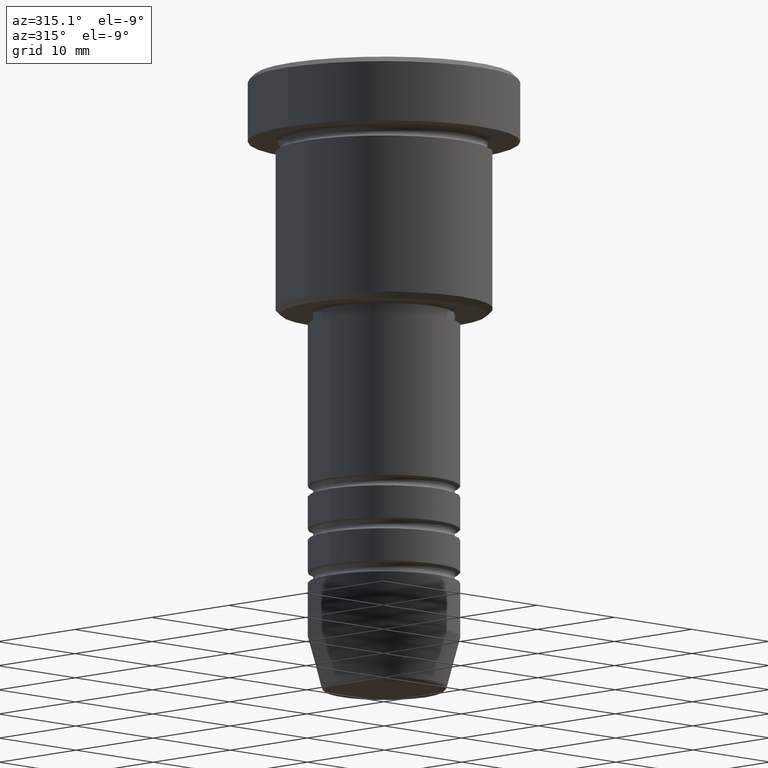
[diagram: clean part render]
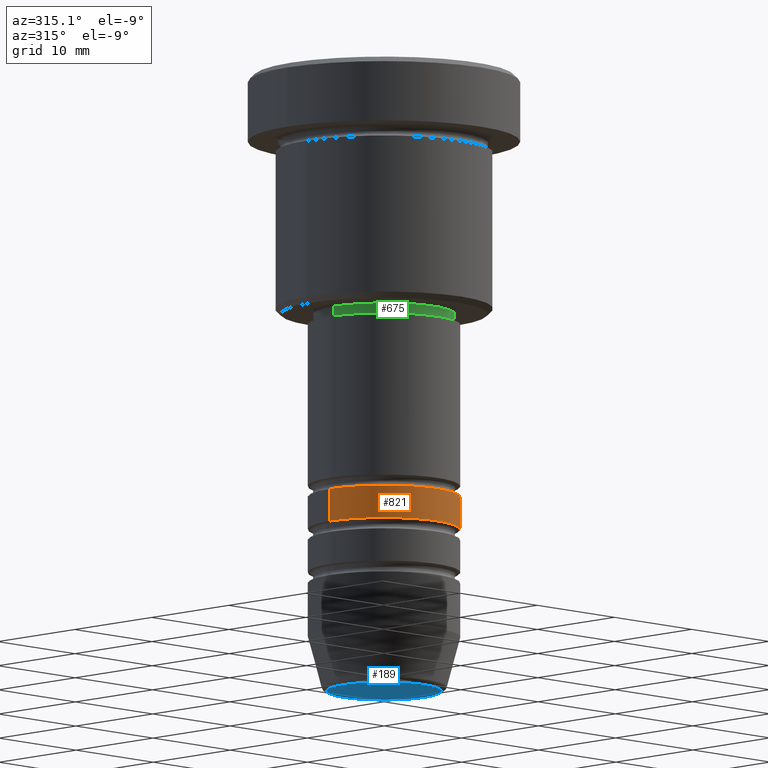
[diagram: same view with three faces highlighted in distinct colors, each labeled with its STEP entity id]
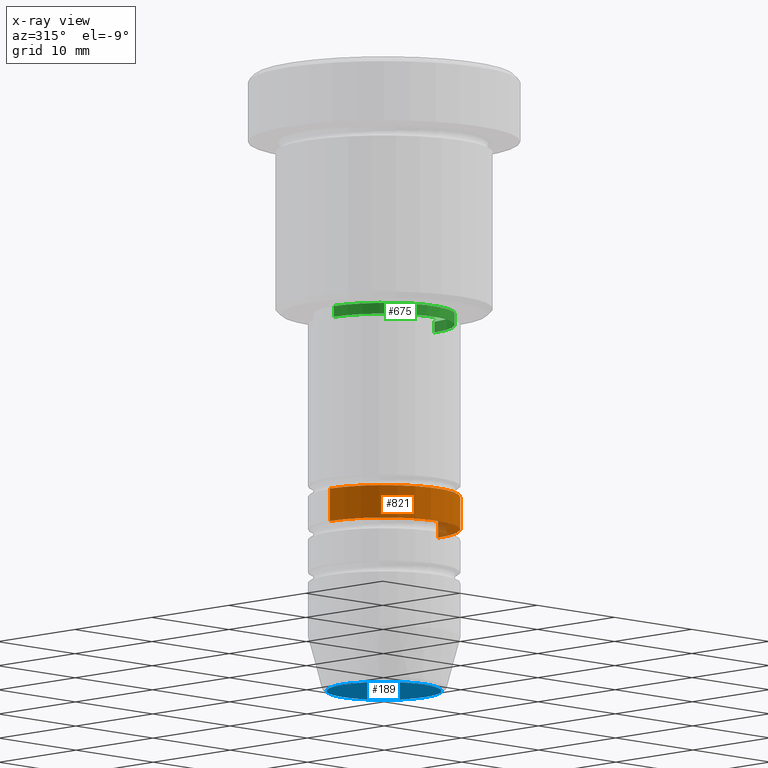
[diagram: x-ray of the same camera — body ghosted, the three highlighted faces saturated]
A machine part, auxiliary view with three faces highlighted in distinct colors.
The next image is the same camera in x-ray (body ghosted, the three faces saturated) — at least one of them is partly hidden behind the body in this view.
Their STEP definitions:

[orange] entity #821 — the highlighted cylindrical surface (partial cylindrical patch) has radius 7 mm, axis along (-0, -0, 1).
#35 = DIRECTION ( 'NONE',  ( -0.000000000000000000, -0.000000000000000000, 1.000000000000000000 ) ) ;
#95 = CARTESIAN_POINT ( 'NONE',  ( -7.000000000000000000, 8.572527594031473190E-16, -38.99999999999989342 ) ) ;
#97 = LINE ( 'NONE', #558, #779 ) ;
#98 = DIRECTION ( 'NONE',  ( 1.000000000000000000, 0.000000000000000000, 0.000000000000000000 ) ) ;
#124 = EDGE_CURVE ( 'NONE', #904, #303, #97, .T. ) ;
#139 = DIRECTION ( 'NONE',  ( 1.000000000000000000, 0.000000000000000000, 0.000000000000000000 ) ) ;
#143 = CARTESIAN_POINT ( 'NONE',  ( -7.000000000000000888, 8.572527594031474176E-16, 0.000000000000000000 ) ) ;
#148 = CARTESIAN_POINT ( 'NONE',  ( 7.000000000000000000, 0.000000000000000000, -38.99999999999989342 ) ) ;
#164 = AXIS2_PLACEMENT_3D ( 'NONE', #1150, #254, #139 ) ;
#184 = CARTESIAN_POINT ( 'NONE',  ( 0.000000000000000000, 0.000000000000000000, -38.99999999999989342 ) ) ;
#190 = CIRCLE ( 'NONE', #898, 7.000000000000000000 ) ;
#192 = VECTOR ( 'NONE', #35, 1000.000000000000000 ) ;
#217 = ORIENTED_EDGE ( 'NONE', *, *, #575, .T. ) ;
#254 = DIRECTION ( 'NONE',  ( -0.000000000000000000, -0.000000000000000000, 1.000000000000000000 ) ) ;
#286 = DIRECTION ( 'NONE',  ( 1.000000000000000000, 0.000000000000000000, 0.000000000000000000 ) ) ;
#303 = VERTEX_POINT ( 'NONE', #148 ) ;
#306 = LINE ( 'NONE', #143, #192 ) ;
#312 = ORIENTED_EDGE ( 'NONE', *, *, #124, .T. ) ;
#360 = VERTEX_POINT ( 'NONE', #813 ) ;
#376 = ORIENTED_EDGE ( 'NONE', *, *, #890, .F. ) ;
#558 = CARTESIAN_POINT ( 'NONE',  ( 7.000000000000000888, 0.000000000000000000, 0.000000000000000000 ) ) ;
#560 = EDGE_LOOP ( 'NONE', ( #1131, #217, #312, #376 ) ) ;
#566 = CARTESIAN_POINT ( 'NONE',  ( 0.000000000000000000, 0.000000000000000000, -41.99999999999991473 ) ) ;
#568 = CARTESIAN_POINT ( 'NONE',  ( 7.000000000000002665, 0.000000000000000000, -41.99999999999991473 ) ) ;
#570 = AXIS2_PLACEMENT_3D ( 'NONE', #566, #845, #286 ) ;
#575 = EDGE_CURVE ( 'NONE', #360, #904, #1121, .T. ) ;
#613 = FACE_OUTER_BOUND ( 'NONE', #560, .T. ) ;
#748 = DIRECTION ( 'NONE',  ( -0.000000000000000000, -0.000000000000000000, 1.000000000000000000 ) ) ;
#779 = VECTOR ( 'NONE', #844, 1000.000000000000000 ) ;
#813 = CARTESIAN_POINT ( 'NONE',  ( -7.000000000000002665, 8.572527594031475162E-16, -41.99999999999991473 ) ) ;
#821 = ADVANCED_FACE ( 'NONE', ( #613 ), #1060, .T. ) ;
#844 = DIRECTION ( 'NONE',  ( -0.000000000000000000, -0.000000000000000000, 1.000000000000000000 ) ) ;
#845 = DIRECTION ( 'NONE',  ( -0.000000000000000000, -0.000000000000000000, 1.000000000000000000 ) ) ;
#890 = EDGE_CURVE ( 'NONE', #951, #303, #190, .T. ) ;
#898 = AXIS2_PLACEMENT_3D ( 'NONE', #184, #748, #98 ) ;
#904 = VERTEX_POINT ( 'NONE', #568 ) ;
#951 = VERTEX_POINT ( 'NONE', #95 ) ;
#1052 = EDGE_CURVE ( 'NONE', #360, #951, #306, .T. ) ;
#1060 = CYLINDRICAL_SURFACE ( 'NONE', #164, 7.000000000000000888 ) ;
#1121 = CIRCLE ( 'NONE', #570, 7.000000000000002665 ) ;
#1131 = ORIENTED_EDGE ( 'NONE', *, *, #1052, .F. ) ;
#1150 = CARTESIAN_POINT ( 'NONE',  ( 0.000000000000000000, 0.000000000000000000, 0.000000000000000000 ) ) ;

[blue] entity #189 — the highlighted planar face has unit normal (0, -0, 1).
#30 = ORIENTED_EDGE ( 'NONE', *, *, #436, .T. ) ;
#135 = CARTESIAN_POINT ( 'NONE',  ( 0.000000000000000000, 0.000000000000000000, -57.00000000000000000 ) ) ;
#189 = ADVANCED_FACE ( 'NONE', ( #741 ), #921, .F. ) ;
#210 = DIRECTION ( 'NONE',  ( 1.000000000000000000, 0.000000000000000000, 0.000000000000000000 ) ) ;
#233 = DIRECTION ( 'NONE',  ( 0.000000000000000000, 0.000000000000000000, -1.000000000000000000 ) ) ;
#410 = DIRECTION ( 'NONE',  ( 0.000000000000000000, -0.000000000000000000, 1.000000000000000000 ) ) ;
#436 = EDGE_CURVE ( 'NONE', #545, #1183, #955, .T. ) ;
#474 = DIRECTION ( 'NONE',  ( 1.000000000000000000, 0.000000000000000000, 0.000000000000000000 ) ) ;
#504 = DIRECTION ( 'NONE',  ( 0.000000000000000000, 0.000000000000000000, -1.000000000000000000 ) ) ;
#516 = EDGE_LOOP ( 'NONE', ( #1099, #30 ) ) ;
#534 = AXIS2_PLACEMENT_3D ( 'NONE', #708, #233, #1067 ) ;
#545 = VERTEX_POINT ( 'NONE', #688 ) ;
#588 = AXIS2_PLACEMENT_3D ( 'NONE', #135, #504, #210 ) ;
#688 = CARTESIAN_POINT ( 'NONE',  ( -5.276590543854903892, 6.757689212787765916E-16, -57.00000000000000000 ) ) ;
#708 = CARTESIAN_POINT ( 'NONE',  ( 0.000000000000000000, 0.000000000000000000, -57.00000000000000000 ) ) ;
#741 = FACE_OUTER_BOUND ( 'NONE', #516, .T. ) ;
#776 = CARTESIAN_POINT ( 'NONE',  ( 5.276590543854903892, 0.000000000000000000, -57.00000000000000000 ) ) ;
#778 = CIRCLE ( 'NONE', #588, 5.276590543854903892 ) ;
#921 = PLANE ( 'NONE',  #989 ) ;
#955 = CIRCLE ( 'NONE', #534, 5.276590543854903892 ) ;
#989 = AXIS2_PLACEMENT_3D ( 'NONE', #1040, #410, #474 ) ;
#1040 = CARTESIAN_POINT ( 'NONE',  ( 0.000000000000000000, 0.000000000000000000, -57.00000000000000000 ) ) ;
#1067 = DIRECTION ( 'NONE',  ( 1.000000000000000000, 0.000000000000000000, 0.000000000000000000 ) ) ;
#1099 = ORIENTED_EDGE ( 'NONE', *, *, #1141, .T. ) ;
#1141 = EDGE_CURVE ( 'NONE', #1183, #545, #778, .T. ) ;
#1183 = VERTEX_POINT ( 'NONE', #776 ) ;

[green] entity #675 — the highlighted cylindrical surface (partial cylindrical patch) has radius 6.5 mm, axis along (-0, -0, 1).
#16 = DIRECTION ( 'NONE',  ( 1.000000000000000000, 0.000000000000000000, 0.000000000000000000 ) ) ;
#69 = CARTESIAN_POINT ( 'NONE',  ( 6.500000000000000888, 0.000000000000000000, 0.000000000000000000 ) ) ;
#88 = CIRCLE ( 'NONE', #237, 6.500000000000000000 ) ;
#89 = CIRCLE ( 'NONE', #238, 6.500000000000000888 ) ;
#147 = VERTEX_POINT ( 'NONE', #177 ) ;
#177 = CARTESIAN_POINT ( 'NONE',  ( 6.500000000000000888, 0.000000000000000000, -23.00000000000000000 ) ) ;
#181 = EDGE_CURVE ( 'NONE', #1007, #608, #88, .T. ) ;
#198 = EDGE_CURVE ( 'NONE', #1134, #1007, #386, .T. ) ;
#201 = DIRECTION ( 'NONE',  ( -0.000000000000000000, -0.000000000000000000, 1.000000000000000000 ) ) ;
#237 = AXIS2_PLACEMENT_3D ( 'NONE', #823, #546, #649 ) ;
#238 = AXIS2_PLACEMENT_3D ( 'NONE', #944, #302, #16 ) ;
#288 = EDGE_LOOP ( 'NONE', ( #1082, #834, #362, #1026 ) ) ;
#302 = DIRECTION ( 'NONE',  ( -0.000000000000000000, -0.000000000000000000, 1.000000000000000000 ) ) ;
#362 = ORIENTED_EDGE ( 'NONE', *, *, #881, .T. ) ;
#386 = LINE ( 'NONE', #671, #880 ) ;
#546 = DIRECTION ( 'NONE',  ( -0.000000000000000000, -0.000000000000000000, 1.000000000000000000 ) ) ;
#583 = FACE_OUTER_BOUND ( 'NONE', #288, .T. ) ;
#608 = VERTEX_POINT ( 'NONE', #887 ) ;
#621 = EDGE_CURVE ( 'NONE', #1134, #147, #89, .T. ) ;
#649 = DIRECTION ( 'NONE',  ( 1.000000000000000000, 0.000000000000000000, 0.000000000000000000 ) ) ;
#657 = DIRECTION ( 'NONE',  ( -0.000000000000000000, -0.000000000000000000, 1.000000000000000000 ) ) ;
#663 = CARTESIAN_POINT ( 'NONE',  ( -6.500000000000000000, 7.960204194457795477E-16, -22.00000000000000000 ) ) ;
#671 = CARTESIAN_POINT ( 'NONE',  ( -6.500000000000000888, 7.960204194457796463E-16, 0.000000000000000000 ) ) ;
#672 = CYLINDRICAL_SURFACE ( 'NONE', #803, 6.500000000000000888 ) ;
#675 = ADVANCED_FACE ( 'NONE', ( #583 ), #672, .T. ) ;
#803 = AXIS2_PLACEMENT_3D ( 'NONE', #949, #1028, #1049 ) ;
#823 = CARTESIAN_POINT ( 'NONE',  ( 0.000000000000000000, 0.000000000000000000, -22.00000000000000000 ) ) ;
#834 = ORIENTED_EDGE ( 'NONE', *, *, #621, .T. ) ;
#880 = VECTOR ( 'NONE', #201, 1000.000000000000000 ) ;
#881 = EDGE_CURVE ( 'NONE', #147, #608, #901, .T. ) ;
#887 = CARTESIAN_POINT ( 'NONE',  ( 6.500000000000000000, 0.000000000000000000, -22.00000000000000000 ) ) ;
#901 = LINE ( 'NONE', #69, #1103 ) ;
#944 = CARTESIAN_POINT ( 'NONE',  ( 0.000000000000000000, 0.000000000000000000, -23.00000000000000000 ) ) ;
#949 = CARTESIAN_POINT ( 'NONE',  ( 0.000000000000000000, 0.000000000000000000, 0.000000000000000000 ) ) ;
#1007 = VERTEX_POINT ( 'NONE', #663 ) ;
#1026 = ORIENTED_EDGE ( 'NONE', *, *, #181, .F. ) ;
#1028 = DIRECTION ( 'NONE',  ( -0.000000000000000000, -0.000000000000000000, 1.000000000000000000 ) ) ;
#1038 = CARTESIAN_POINT ( 'NONE',  ( -6.500000000000000888, 7.960204194457796463E-16, -23.00000000000000000 ) ) ;
#1049 = DIRECTION ( 'NONE',  ( 1.000000000000000000, 0.000000000000000000, 0.000000000000000000 ) ) ;
#1082 = ORIENTED_EDGE ( 'NONE', *, *, #198, .F. ) ;
#1103 = VECTOR ( 'NONE', #657, 1000.000000000000000 ) ;
#1134 = VERTEX_POINT ( 'NONE', #1038 ) ;